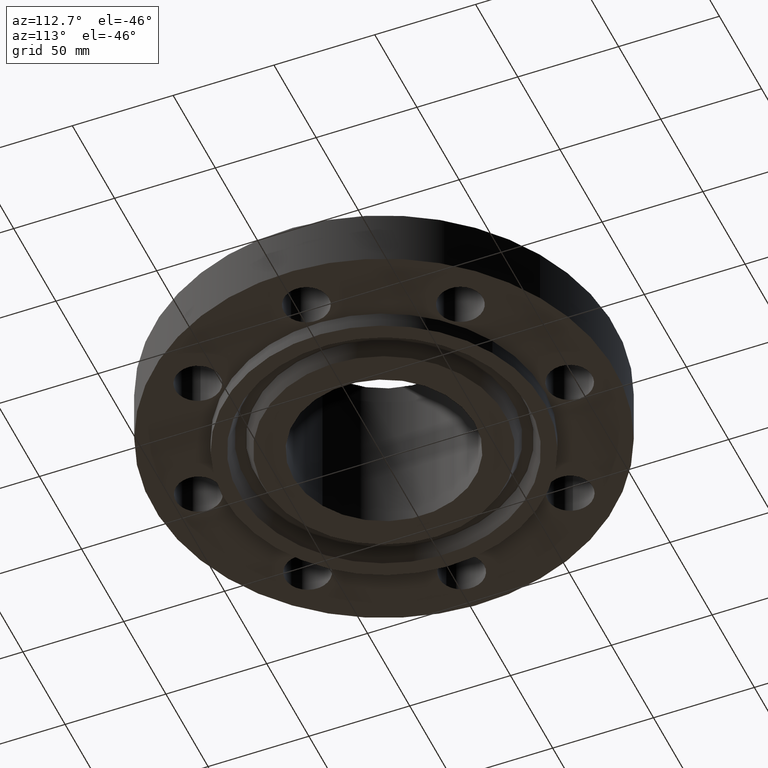
[diagram: clean part render]
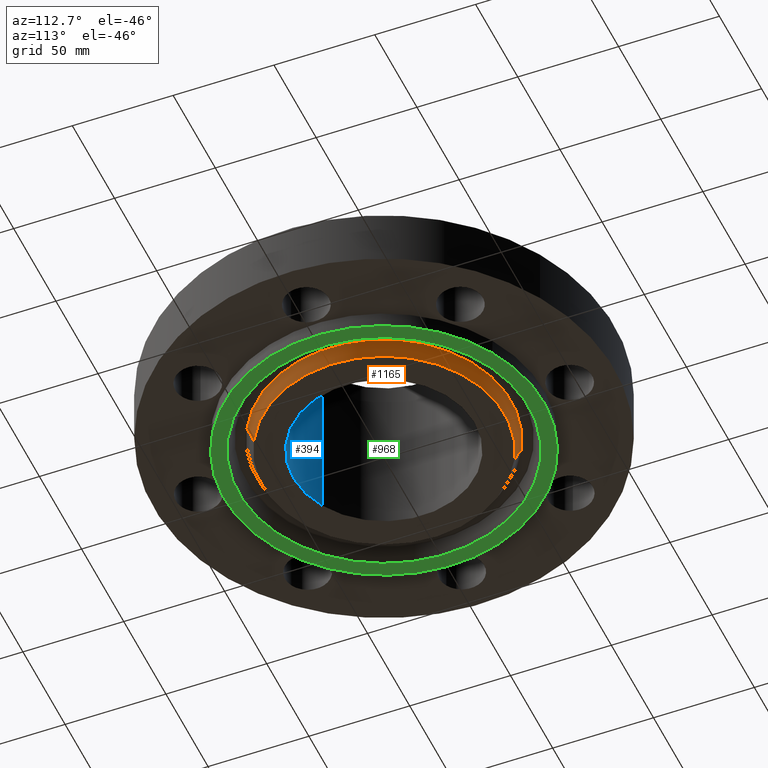
[diagram: same view with three faces highlighted in distinct colors, each labeled with its STEP entity id]
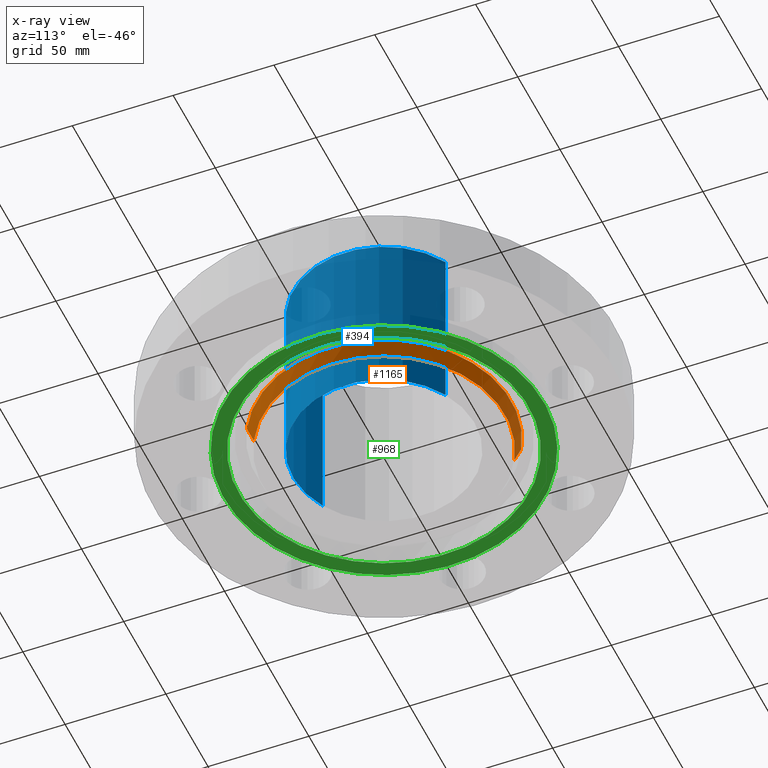
[diagram: x-ray of the same camera — body ghosted, the three highlighted faces saturated]
A machine part, auxiliary view with three faces highlighted in distinct colors.
The next image is the same camera in x-ray (body ghosted, the three faces saturated) — at least one of them is partly hidden behind the body in this view.
Their STEP definitions:

[orange] entity #1165 — the highlighted conical surface has half-angle 23 deg.
#971=AXIS2_PLACEMENT_3D('Circle Axis2P3D',#969,#970,$) ;
#1115=AXIS2_PLACEMENT_3D('Circle Axis2P3D',#1113,#1114,$) ;
#1147=AXIS2_PLACEMENT_3D('Cone Axis2P3D',#1144,#1145,#1146) ;
#969=CARTESIAN_POINT('Axis2P3D Location',(-5.59482469102E-016,2.79741234551E-016,-0.313000000001)) ;
#973=CARTESIAN_POINT('Vertex',(-1.13120455834,2.07065605479,-0.313000000001)) ;
#975=CARTESIAN_POINT('Vertex',(1.13120455834,-2.07065605479,-0.313000000001)) ;
#1110=CARTESIAN_POINT('Vertex',(1.19105768193,-2.18021646263,-0.0188873350169)) ;
#1113=CARTESIAN_POINT('Axis2P3D Location',(0.,0.,-0.0188873350169)) ;
#1117=CARTESIAN_POINT('Vertex',(-1.19105768193,2.18021646263,-0.0188873350169)) ;
#1144=CARTESIAN_POINT('Axis2P3D Location',(0.,0.,-0.373000000001)) ;
#1149=CARTESIAN_POINT('Line Origine',(-1.16113112014,2.12543625871,-0.165943667509)) ;
#1154=CARTESIAN_POINT('Line Origine',(1.16113112014,-2.12543625871,-0.165943667509)) ;
#970=DIRECTION('Axis2P3D Direction',(0.,0.,-0.0393700787402)) ;
#1114=DIRECTION('Axis2P3D Direction',(0.,0.,0.0393700787402)) ;
#1145=DIRECTION('Axis2P3D Direction',(0.,0.,0.0393700787402)) ;
#1146=DIRECTION('Axis2P3D XDirection',(-0.0188750212049,0.0345504945626,0.)) ;
#1150=DIRECTION('Vector Direction',(-0.00737505833565,0.0134999537303,0.0362403485611)) ;
#1155=DIRECTION('Vector Direction',(0.00737505833565,-0.0134999537303,0.0362403485611)) ;
#1151=VECTOR('Line Direction',#1150,0.0393700787402) ;
#1156=VECTOR('Line Direction',#1155,0.0393700787402) ;
#1160=ORIENTED_EDGE('',*,*,#1153,.F.) ;
#1161=ORIENTED_EDGE('',*,*,#1119,.F.) ;
#1162=ORIENTED_EDGE('',*,*,#1158,.T.) ;
#1163=ORIENTED_EDGE('',*,*,#977,.F.) ;
#1165=ADVANCED_FACE('PartBody',(#1164),#1148,.T.) ;
#972=CIRCLE('generated circle',#971,2.35950000001) ;
#1116=CIRCLE('generated circle',#1115,2.48434341942) ;
#1148=CONICAL_SURFACE('Cone',#1147,2.33403151104,0.401425727959) ;
#977=EDGE_CURVE('',#974,#976,#972,.T.) ;
#1119=EDGE_CURVE('',#1111,#1118,#1116,.T.) ;
#1153=EDGE_CURVE('',#1118,#974,#1152,.F.) ;
#1158=EDGE_CURVE('',#1111,#976,#1157,.F.) ;
#1159=EDGE_LOOP('',(#1160,#1161,#1162,#1163)) ;
#1164=FACE_OUTER_BOUND('',#1159,.T.) ;
#1152=LINE('Line',#1149,#1151) ;
#1157=LINE('Line',#1154,#1156) ;
#974=VERTEX_POINT('',#973) ;
#976=VERTEX_POINT('',#975) ;
#1111=VERTEX_POINT('',#1110) ;
#1118=VERTEX_POINT('',#1117) ;

[blue] entity #394 — the highlighted cylindrical surface (partial cylindrical patch) has radius 45.0596 mm, axis along (0, 0, -1).
#358=AXIS2_PLACEMENT_3D('Cylinder Axis2P3D',#355,#356,#357) ;
#362=AXIS2_PLACEMENT_3D('Circle Axis2P3D',#360,#361,$) ;
#378=AXIS2_PLACEMENT_3D('Circle Axis2P3D',#376,#377,$) ;
#355=CARTESIAN_POINT('Axis2P3D Location',(0.,0.,1.40850000001)) ;
#360=CARTESIAN_POINT('Axis2P3D Location',(0.,0.,3.13000000001)) ;
#364=CARTESIAN_POINT('Vertex',(0.850500905487,1.5568314648,3.13000000001)) ;
#366=CARTESIAN_POINT('Vertex',(-0.850500905487,-1.5568314648,3.13000000001)) ;
#369=CARTESIAN_POINT('Line Origine',(0.850500905487,1.5568314648,1.40850000001)) ;
#373=CARTESIAN_POINT('Vertex',(0.850500905487,1.5568314648,-0.313000000001)) ;
#376=CARTESIAN_POINT('Axis2P3D Location',(0.,0.,-0.313000000001)) ;
#380=CARTESIAN_POINT('Vertex',(-0.850500905487,-1.5568314648,-0.313000000001)) ;
#383=CARTESIAN_POINT('Line Origine',(-0.850500905487,-1.5568314648,1.40850000001)) ;
#356=DIRECTION('Axis2P3D Direction',(0.,0.,-0.0393700787402)) ;
#357=DIRECTION('Axis2P3D XDirection',(-0.0188750212049,-0.0345504945626,0.)) ;
#361=DIRECTION('Axis2P3D Direction',(0.,0.,-0.0393700787402)) ;
#370=DIRECTION('Vector Direction',(0.,0.,-0.0393700787402)) ;
#377=DIRECTION('Axis2P3D Direction',(0.,0.,-0.0393700787402)) ;
#384=DIRECTION('Vector Direction',(0.,0.,-0.0393700787402)) ;
#371=VECTOR('Line Direction',#370,0.0393700787402) ;
#385=VECTOR('Line Direction',#384,0.0393700787402) ;
#389=ORIENTED_EDGE('',*,*,#368,.F.) ;
#390=ORIENTED_EDGE('',*,*,#375,.T.) ;
#391=ORIENTED_EDGE('',*,*,#382,.T.) ;
#392=ORIENTED_EDGE('',*,*,#387,.F.) ;
#394=ADVANCED_FACE('PartBody',(#393),#359,.F.) ;
#363=CIRCLE('generated circle',#362,1.77400000001) ;
#379=CIRCLE('generated circle',#378,1.77400000001) ;
#359=CYLINDRICAL_SURFACE('generated cylinder',#358,1.77400000001) ;
#368=EDGE_CURVE('',#365,#367,#363,.T.) ;
#375=EDGE_CURVE('',#365,#374,#372,.T.) ;
#382=EDGE_CURVE('',#374,#381,#379,.T.) ;
#387=EDGE_CURVE('',#367,#381,#386,.T.) ;
#388=EDGE_LOOP('',(#389,#390,#391,#392)) ;
#393=FACE_OUTER_BOUND('',#388,.T.) ;
#372=LINE('Line',#369,#371) ;
#386=LINE('Line',#383,#385) ;
#365=VERTEX_POINT('',#364) ;
#367=VERTEX_POINT('',#366) ;
#374=VERTEX_POINT('',#373) ;
#381=VERTEX_POINT('',#380) ;

[green] entity #968 — the highlighted planar face has unit normal (0, 0, -1).
#446=AXIS2_PLACEMENT_3D('Circle Axis2P3D',#444,#445,$) ;
#481=AXIS2_PLACEMENT_3D('Circle Axis2P3D',#479,#480,$) ;
#944=AXIS2_PLACEMENT_3D('Plane Axis2P3D',#941,#942,#943) ;
#952=AXIS2_PLACEMENT_3D('Circle Axis2P3D',#950,#951,$) ;
#961=AXIS2_PLACEMENT_3D('Circle Axis2P3D',#959,#960,$) ;
#444=CARTESIAN_POINT('Axis2P3D Location',(0.,0.,-0.313000000001)) ;
#448=CARTESIAN_POINT('Vertex',(-1.49820480814,-2.74244550592,-0.313000000001)) ;
#450=CARTESIAN_POINT('Vertex',(1.49820480814,2.74244550592,-0.313000000001)) ;
#479=CARTESIAN_POINT('Axis2P3D Location',(0.,0.,-0.313000000001)) ;
#941=CARTESIAN_POINT('Axis2P3D Location',(0.,1.77400000001,-0.313000000001)) ;
#950=CARTESIAN_POINT('Axis2P3D Location',(-2.09805925913E-016,-5.59482469102E-016,-0.313000000001)) ;
#954=CARTESIAN_POINT('Vertex',(1.35605513595,-2.48224227632,-0.313000000001)) ;
#956=CARTESIAN_POINT('Vertex',(-1.35605513595,2.48224227632,-0.313000000001)) ;
#959=CARTESIAN_POINT('Axis2P3D Location',(1.39870617276E-016,5.59482469102E-016,-0.313000000001)) ;
#445=DIRECTION('Axis2P3D Direction',(0.,0.,-0.0393700787402)) ;
#480=DIRECTION('Axis2P3D Direction',(0.,0.,-0.0393700787402)) ;
#942=DIRECTION('Axis2P3D Direction',(0.,0.,-0.0393700787402)) ;
#943=DIRECTION('Axis2P3D XDirection',(0.0393700787402,0.,0.)) ;
#951=DIRECTION('Axis2P3D Direction',(0.,0.,-0.0393700787402)) ;
#960=DIRECTION('Axis2P3D Direction',(0.,0.,-0.0393700787402)) ;
#947=ORIENTED_EDGE('',*,*,#452,.T.) ;
#948=ORIENTED_EDGE('',*,*,#483,.T.) ;
#965=ORIENTED_EDGE('',*,*,#958,.F.) ;
#966=ORIENTED_EDGE('',*,*,#963,.F.) ;
#967=FACE_BOUND('',#964,.T.) ;
#968=ADVANCED_FACE('PartBody',(#949,#967),#945,.T.) ;
#447=CIRCLE('generated circle',#446,3.12500000001) ;
#482=CIRCLE('generated circle',#481,3.12500000001) ;
#953=CIRCLE('generated circle',#952,2.82850000001) ;
#962=CIRCLE('generated circle',#961,2.82850000001) ;
#452=EDGE_CURVE('',#449,#451,#447,.T.) ;
#483=EDGE_CURVE('',#451,#449,#482,.T.) ;
#958=EDGE_CURVE('',#955,#957,#953,.T.) ;
#963=EDGE_CURVE('',#957,#955,#962,.T.) ;
#946=EDGE_LOOP('',(#947,#948)) ;
#964=EDGE_LOOP('',(#965,#966)) ;
#949=FACE_OUTER_BOUND('',#946,.T.) ;
#945=PLANE('',#944) ;
#449=VERTEX_POINT('',#448) ;
#451=VERTEX_POINT('',#450) ;
#955=VERTEX_POINT('',#954) ;
#957=VERTEX_POINT('',#956) ;